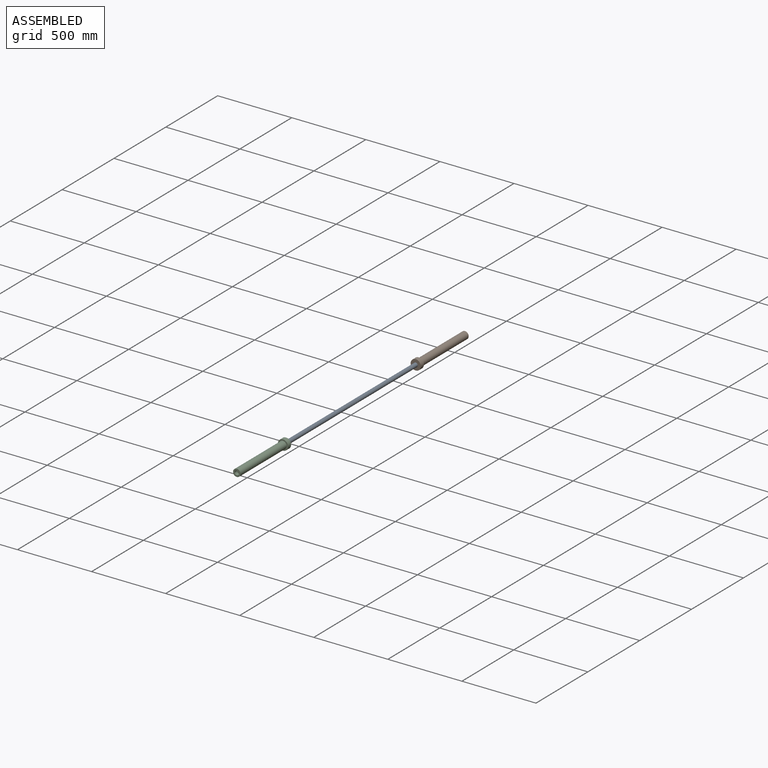
[diagram: assembled view]
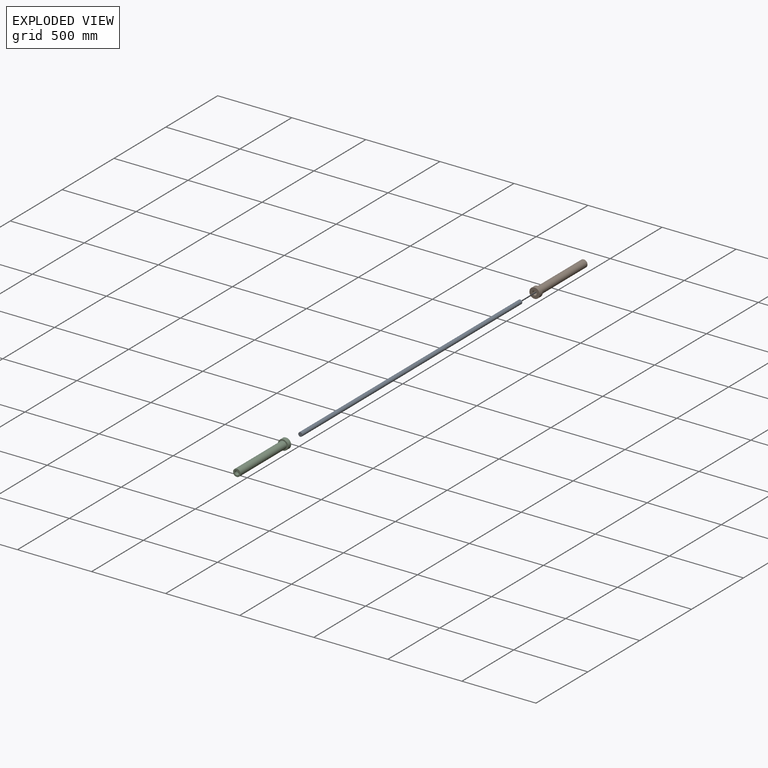
[diagram: exploded view]
GUIDED TOUR — MATED ASSEMBLY (Onshape document b13ca284b816fb8082c65d0a, AutoMate assembly b13ca284b816fb8082c65d0a_336e30f534a715399240674b_7bf9c65d9247172013798be6_default)

This assembly has 3 components, labeled P0..P2 below (a component is one placed occurrence of a part; the same part can appear more than once), held together by 2 mates. A mate is a constraint between two components; its type names the relative motion it leaves free:
  CYLINDRICAL — leaves both rotation about and translation along the listed axis free.
Axis/direction vectors are unit vectors and 'through' points are millimeter coordinates, both in the assembly's world frame.

MATES
  1. CYLINDRICAL "Cylindrical 1": P1 <-> P0, axis (0.000, -1.000, 0.000) through (0.00, 625.00, 0.00) mm
  2. CYLINDRICAL "Cylindrical 2": P2 <-> P0, axis (0.000, 1.000, 0.000) through (0.00, -625.00, 0.00) mm

ASSEMBLY ORDER
  1. P2 — the base component [order verified]
  2. P0 [order verified]
  3. P1 [order verified]
Order-tag legend:
  [order verified] — this step's position reverses a verified removal order: the component was checked to insert without passing through the ones already placed.

Of the 3 components, 2 carry the full construction recipe — the FeatureScript program that regenerates the part's solid from scratch; the rest are supplied as boundary geometry only.
Each toured component is shown spotlighted twice — in the assembled view, then in the exploded view, where a leader line traces a displaced component back to its assembled socket (saturated green if recipe-attached, orange if geometry-only; every other component desaturated gray) — followed by its recipe or geometry summary and the mates that hold it.
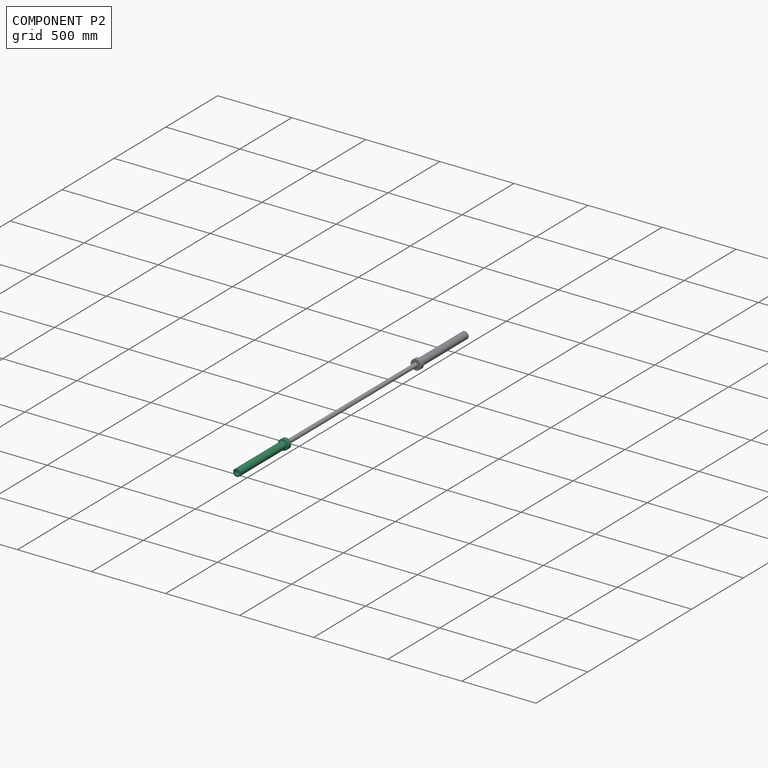
[diagram: component P2 — assembled]
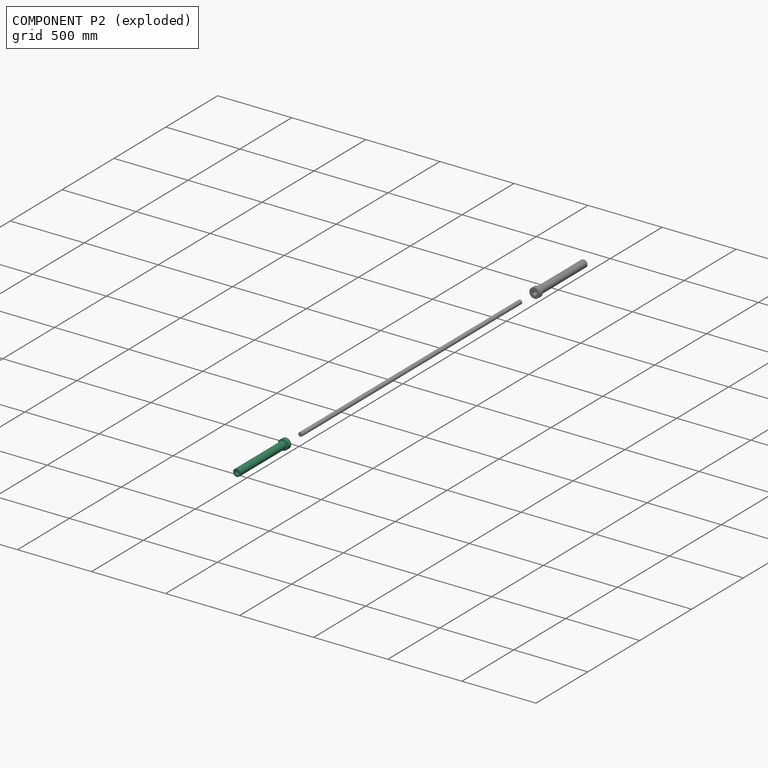
[diagram: component P2 — exploded]
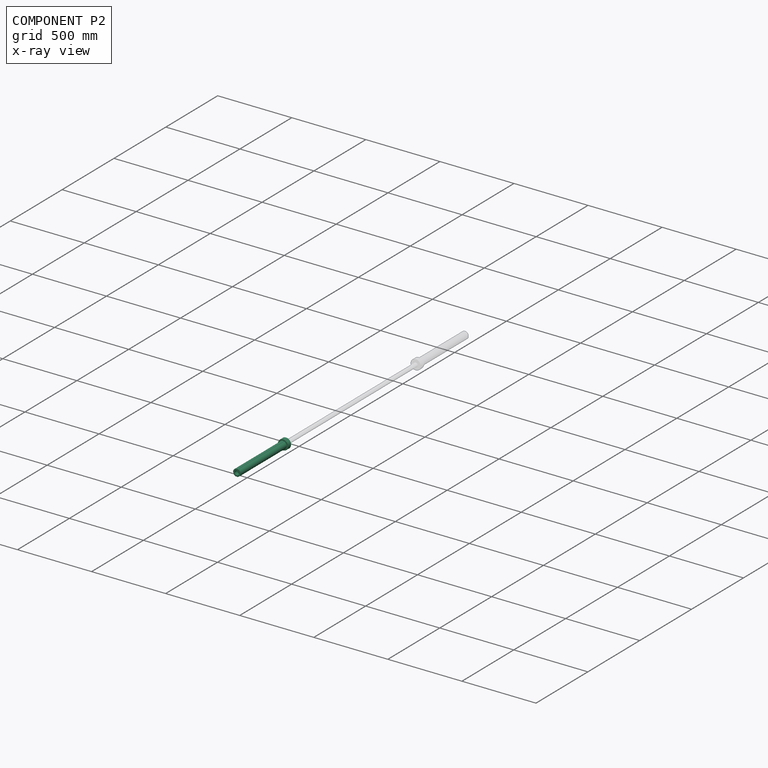
[diagram: component P2 — x-ray view]
COMPONENT P2 — same part as P1 (CADFS 00332417); its construction recipe is shown at P1.
Held by: CYLINDRICAL mate "Cylindrical 2" to P0.
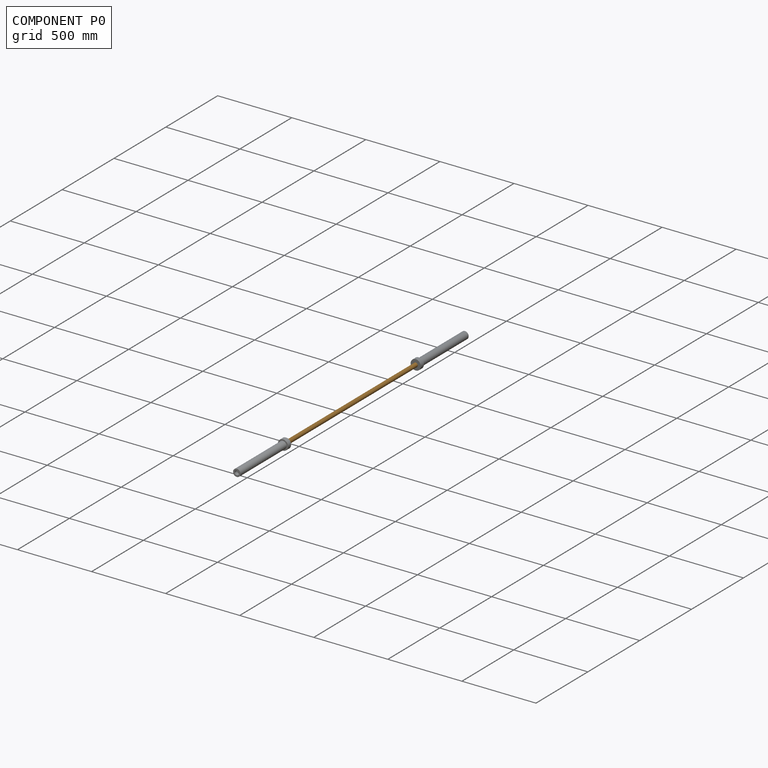
[diagram: component P0 — assembled]
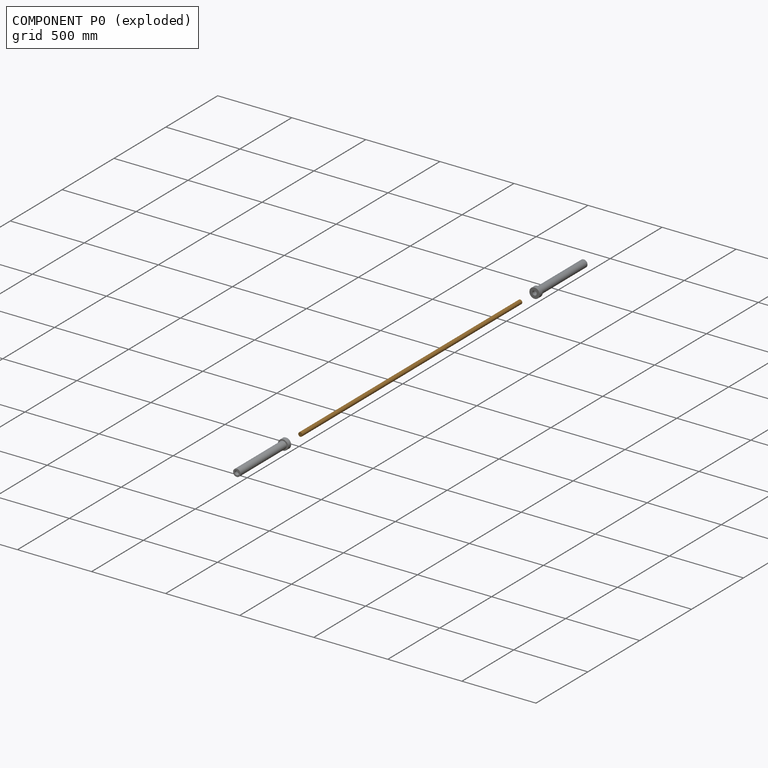
[diagram: component P0 — exploded]
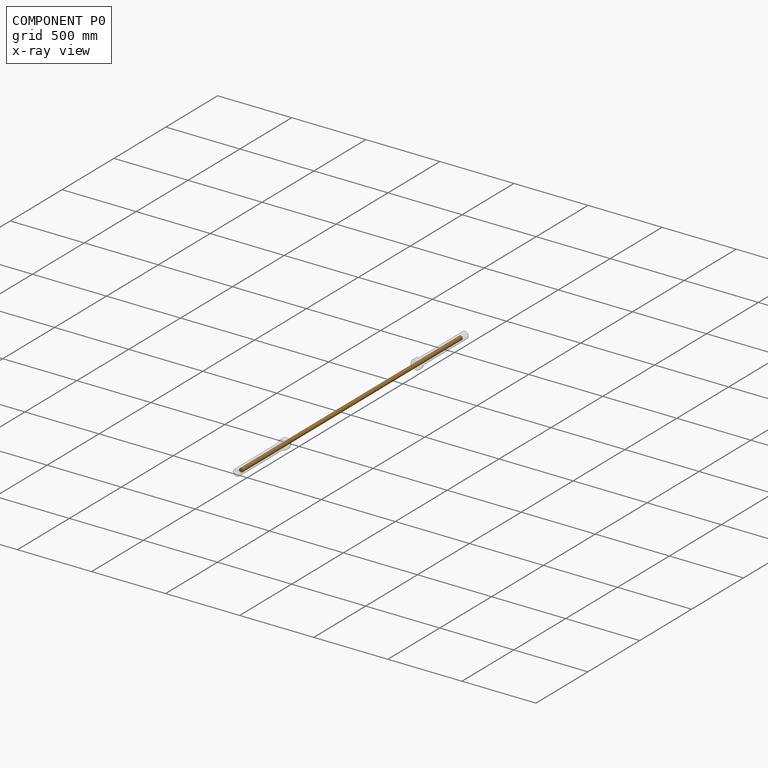
[diagram: component P0 — x-ray view]
COMPONENT P0 — geometry summary (no construction recipe available for this part):
  bounding box: 2120.4 x 32.7 x 28.4 mm
  B-rep topology: 1 solid, 58 faces, 335 edges
  volume: 1299525 mm^3 (66% of its bounding box)
  symmetry: 2-fold rotationally symmetric about the x axis; revolution-symmetric about the y axis through its bounding-box center; 2-fold rotationally symmetric about the z axis; mirror-symmetric across its x mid-plane, y mid-plane, z mid-plane
Held by: CYLINDRICAL mate "Cylindrical 1" to P1; CYLINDRICAL mate "Cylindrical 2" to P2.
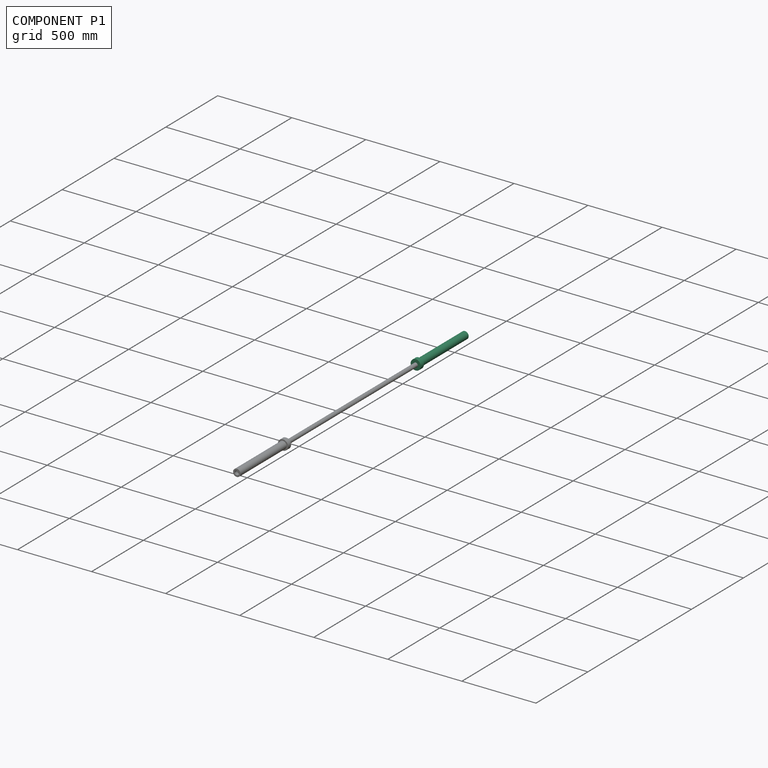
[diagram: component P1 — assembled]
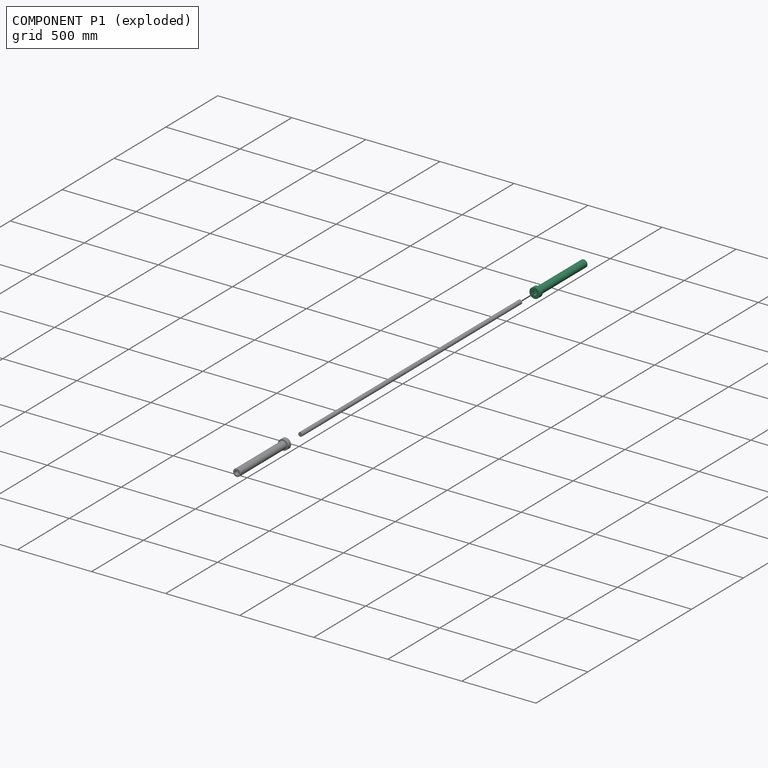
[diagram: component P1 — exploded]
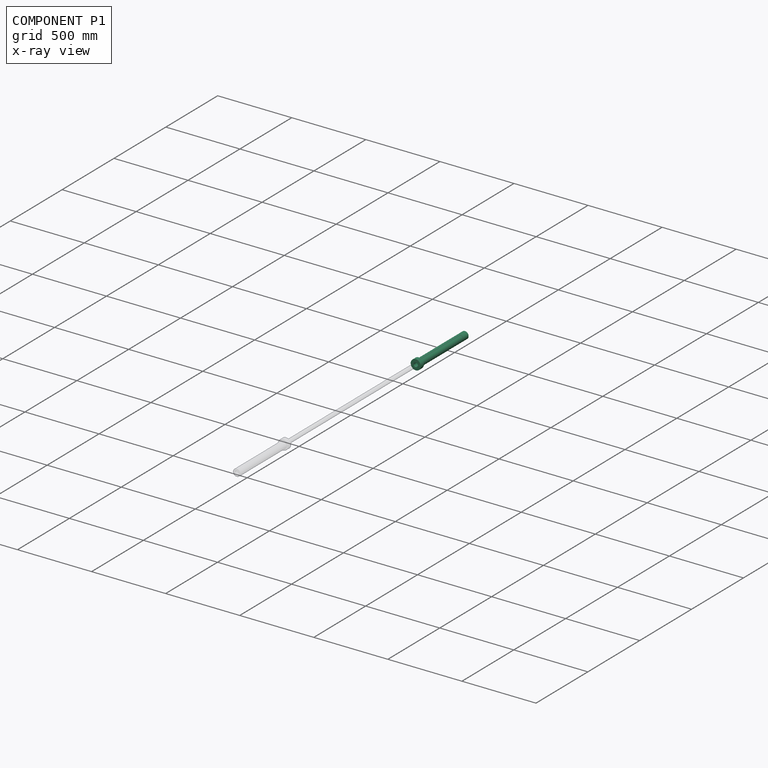
[diagram: component P1 — x-ray view]
COMPONENT P1 — recipe-attached (CADFS 00332417, mesh-verified: the recipe's output STEP matches this component's geometry to below the mesh-comparison resolution (tessellation chordal tolerance ~0.727 mm)).
Held by: CYLINDRICAL mate "Cylindrical 1" to P0.
Construction recipe (FeatureScript — the CAD program that rebuilds this solid; sketch coordinates are in the units given by the * unit suffixes, e.g. mm):

FeatureScript 2615;
import(path : "onshape/std/geometry.fs", version : "2615.0");
import(path : "onshape/std/common.fs", version : "2615.0");
const mm = millimeter;
const VERTEX = EntityType.VERTEX;
const EDGE = EntityType.EDGE;
const FACE = EntityType.FACE;
const BODY = EntityType.BODY;
function v(x, y){return vector(x, y);}
function OD(order){return orderDisambiguation(order);}
function OSD(set){return originalSetDisambiguation(set);}
function TD(topology){return topologyDisambiguation(topology);}
function TDD(query){return trueDependencyDisambiguation(query);}
function sQuery(a, b, c) {return sketchEntityQuery(a, b, c);}

annotation { "Feature Type Name" : "Feature", "Feature Type Description" : "" }
export const myFeature = defineFeature(function(context is Context, id is Id, definition is map)
    precondition{}
    {
        {
            var Q0;
            Q0=qCreatedBy(makeId("Right.planeOp"),FACE);
            var sketch = newSketch(context, id + "F0", { "sketchPlane" : qUnion([Q0])});
            skLineSegment(sketch, "E0.bottom", {"start": v(-81.02, 34.5) * mm, "end": v(-51.02, 34.5) * mm});
            skLineSegment(sketch, "E0.top", {"start": v(-81.02, 14.5) * mm, "end": v(-51.02, 14.5) * mm});
            skLineSegment(sketch, "E0.left", {"start": v(-81.02, 34.5) * mm, "end": v(-81.02, 14.5) * mm});
            skLineSegment(sketch, "E0.right", {"start": v(-51.02, 34.5) * mm, "end": v(-51.02, 14.5) * mm});
            skPoint(sketch, "E1.oppositeSnap0", {"position": v(-40.36, 27.63) * mm});
            skLineSegment(sketch, "E2.bottom", {"start": v(-51.02, 14.5) * mm, "end": v(393.98, 14.5) * mm});
            skLineSegment(sketch, "E2.top", {"start": v(-51.02, 25) * mm, "end": v(393.98, 25) * mm});
            skLineSegment(sketch, "E2.left", {"start": v(-51.02, 14.5) * mm, "end": v(-51.02, 25) * mm});
            skLineSegment(sketch, "E2.right", {"start": v(393.98, 14.5) * mm, "end": v(393.98, 25) * mm});
            skLineSegment(sketch, "E3.bottom", {"start": v(370.92, 14.5) * mm, "end": v(353.98, 14.5) * mm});
            skLineSegment(sketch, "E3.top", {"start": v(370.92, 7.5) * mm, "end": v(353.98, 7.5) * mm});
            skLineSegment(sketch, "E3.left", {"start": v(370.92, 14.5) * mm, "end": v(370.92, 7.5) * mm});
            skLineSegment(sketch, "E3.right", {"start": v(353.98, 14.5) * mm, "end": v(353.98, 7.5) * mm});
            skLineSegment(sketch, "E4", {"start": v(0, 0) * mm, "end": v(214.3, 0) * mm, "construction": true});
            skSolve(sketch);
        }
        {
            var Q0;
            {var subQ6=sQuery(id+"F0.wireOp",EDGE,"E2.top");Q0=makeQuery(id+"F0.imprint","IMPRINT",FACE,{"disambiguationData":[TD([[makeQuery(id+"F0.imprint","IMPRINT",EDGE,{"derivedFrom":subQ6}),-1.0]])]});}
            var Q1;
            Q1=makeQuery(id+"F0.imprint","IMPRINT",FACE,{"disambiguationData":[TD([[makeQuery(id+"F0.imprint","IMPRINT",EDGE,{"derivedFrom":sQuery(id+"F0.wireOp",EDGE,"E3.top")}),-1.0]])]});
            var Q2;
            {var subQ3=sQuery(id+"F0.wireOp",EDGE,"E0.bottom");Q2=makeQuery(id+"F0.imprint","IMPRINT",FACE,{"disambiguationData":[TD([[makeQuery(id+"F0.imprint","IMPRINT",EDGE,{"derivedFrom":subQ3}),-1.0]])]});}
            var Q3;
            Q3=sQuery(id+"F0.wireOp",EDGE,"E4");
            revolve(context, id + "F1", {"entities" : qUnion([Q0, Q1, Q2]), "axis" : qUnion([Q3]), "revolveType" : RevolveType.FULL});
        }
    });
PROVENANCE & LICENSES
Assembly (occurrences, transforms, mates, per-part STEP geometry): AutoMate dataset, Zenodo record 7776208, CC0.
Construction recipes: CADFS (HuggingFace VladPyatov/CADFS, CC-BY-4.0, layered over the ABC dataset), FeatureScript reconstruction programs keyed by ABC model id.
Join: ABC meta listings map ABC model id -> Onshape documentId; within a shared document, parts are matched by geometric signature (bounding-box dims + volume at 0.1% relative tolerance, exact B-rep face/solid counts).
Verification: 2 of this assembly's 3 components carry a recipe attachment, and every attachment is mesh-verified: the CADFS STEP and the AutoMate member STEP were compared as meshes in their shared local frame (symmetric sampled-point-to-mesh distance); worst across the 2 attachments: below the mesh-comparison resolution (tessellation chordal tolerance ~0.727 mm) on a 485 mm part.
Renders: orthographic iso camera (az 35 / el 25); the floor grid conveys scale (grid pitch printed in each image; no ruler). In the exploded view each component is displaced by its stored offset vector: the offsets alone carry the explosion direction (mate normal/axis signs are not orientation cues and do not encode it), and separation distances are assigned per mate-chain, not proportionally to assembly-order depth.
